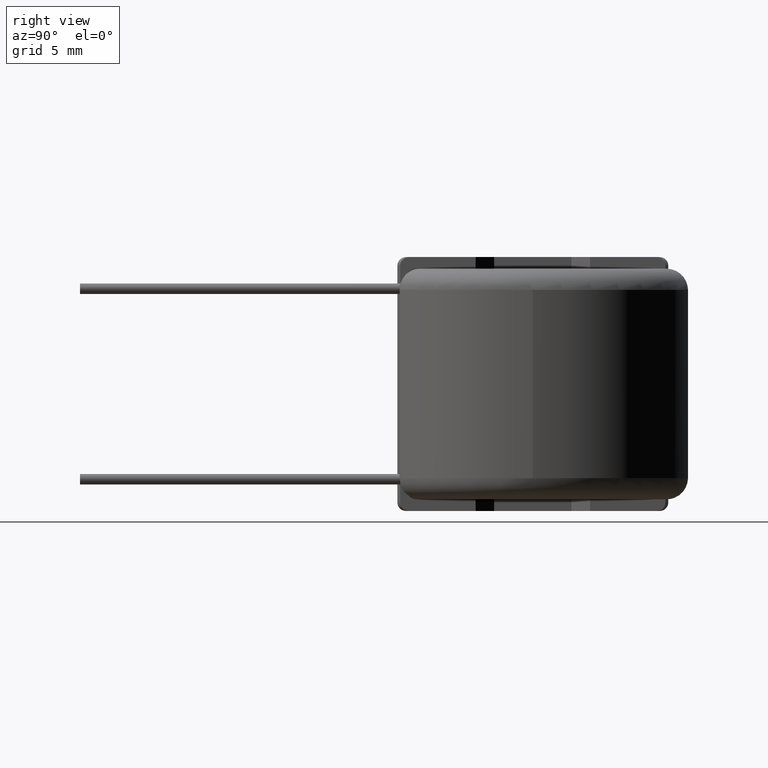
[diagram: clean part render]
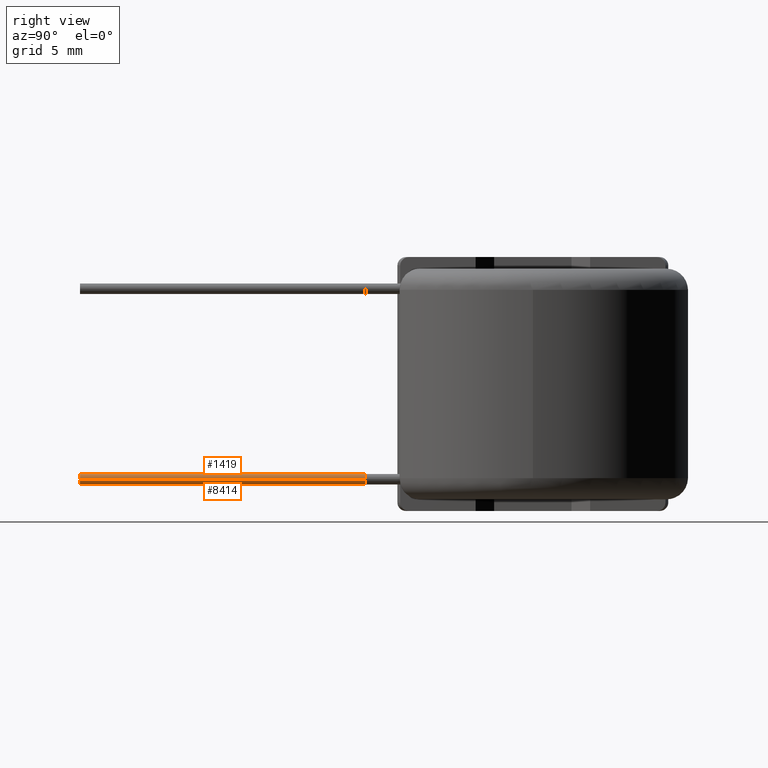
[diagram: same view with one multi-face feature highlighted, each face labeled with its STEP entity id]
A machine part, right view. The highlighted faces form ONE feature: a constant-radius fillet chain: 2 tangent blend faces with common blend radius 0.25 mm. The faces share edges in the B-rep.
Their STEP definitions:
[1] entity #1419 (Cylinder):
#70 = CARTESIAN_POINT ( 'NONE',  ( 2.499999999999992895, -21.40000000000000568, -4.500000000000000000 ) ) ;
#762 = DIRECTION ( 'NONE',  ( 1.000000000000000000, 0.0000000000000000000, 0.0000000000000000000 ) ) ;
#883 = CYLINDRICAL_SURFACE ( 'NONE', #1849, 0.2500000000000006661 ) ;
#940 = VERTEX_POINT ( 'NONE', #6138 ) ;
#1028 = CIRCLE ( 'NONE', #10235, 0.2500000000000002220 ) ;
#1182 = DIRECTION ( 'NONE',  ( 1.734723475976807094E-16, 1.000000000000000000, 0.0000000000000000000 ) ) ;
#1290 = FACE_OUTER_BOUND ( 'NONE', #10190, .T. ) ;
#1402 = CARTESIAN_POINT ( 'NONE',  ( 2.749999999999993783, -21.40000000000000568, -4.500000000000000000 ) ) ;
#1419 = ADVANCED_FACE ( 'NONE', ( #1290 ), #883, .T. ) ;
#1498 = CARTESIAN_POINT ( 'NONE',  ( 2.499999999999995115, -7.900000000000000355, -4.500000000000000000 ) ) ;
#1623 = EDGE_CURVE ( 'NONE', #3964, #7441, #3393, .T. ) ;
#1723 = DIRECTION ( 'NONE',  ( 3.469446951953614189E-16, 1.000000000000000000, -0.0000000000000000000 ) ) ;
#1849 = AXIS2_PLACEMENT_3D ( 'NONE', #6364, #8850, #762 ) ;
#2414 = ORIENTED_EDGE ( 'NONE', *, *, #9578, .T. ) ;
#2465 = EDGE_CURVE ( 'NONE', #940, #9850, #5828, .T. ) ;
#2642 = CARTESIAN_POINT ( 'NONE',  ( 2.749999999999995559, -7.900000000000000355, -4.500000000000000000 ) ) ;
#3223 = CIRCLE ( 'NONE', #6570, 0.2500000000000002220 ) ;
#3393 = LINE ( 'NONE', #8555, #7644 ) ;
#3925 = DIRECTION ( 'NONE',  ( 0.0000000000000000000, 0.0000000000000000000, 1.000000000000000000 ) ) ;
#3964 = VERTEX_POINT ( 'NONE', #1402 ) ;
#4692 = ORIENTED_EDGE ( 'NONE', *, *, #1623, .T. ) ;
#5483 = CARTESIAN_POINT ( 'NONE',  ( 2.249999999999995115, -7.900000000000000355, -4.500000000000000000 ) ) ;
#5568 = VECTOR ( 'NONE', #7195, 1000.000000000000000 ) ;
#5620 = DIRECTION ( 'NONE',  ( -0.0000000000000000000, -1.000000000000000000, -0.0000000000000000000 ) ) ;
#5828 = LINE ( 'NONE', #6473, #5568 ) ;
#6138 = CARTESIAN_POINT ( 'NONE',  ( 2.249999999999992450, -21.40000000000000568, -4.500000000000000000 ) ) ;
#6364 = CARTESIAN_POINT ( 'NONE',  ( 2.499999999999992895, -21.40000000000000568, -4.500000000000000000 ) ) ;
#6473 = CARTESIAN_POINT ( 'NONE',  ( 2.249999999999992450, -21.40000000000000568, -4.500000000000000000 ) ) ;
#6570 = AXIS2_PLACEMENT_3D ( 'NONE', #70, #1723, #6607 ) ;
#6607 = DIRECTION ( 'NONE',  ( 0.0000000000000000000, 0.0000000000000000000, -1.000000000000000000 ) ) ;
#7149 = ORIENTED_EDGE ( 'NONE', *, *, #2465, .F. ) ;
#7195 = DIRECTION ( 'NONE',  ( 1.734723475976807094E-16, 1.000000000000000000, 0.0000000000000000000 ) ) ;
#7441 = VERTEX_POINT ( 'NONE', #2642 ) ;
#7644 = VECTOR ( 'NONE', #1182, 1000.000000000000000 ) ;
#7926 = ORIENTED_EDGE ( 'NONE', *, *, #9235, .T. ) ;
#8555 = CARTESIAN_POINT ( 'NONE',  ( 2.749999999999993783, -21.40000000000000568, -4.500000000000000000 ) ) ;
#8850 = DIRECTION ( 'NONE',  ( 1.734723475976807094E-16, 1.000000000000000000, 0.0000000000000000000 ) ) ;
#9235 = EDGE_CURVE ( 'NONE', #940, #3964, #3223, .T. ) ;
#9578 = EDGE_CURVE ( 'NONE', #7441, #9850, #1028, .T. ) ;
#9850 = VERTEX_POINT ( 'NONE', #5483 ) ;
#10190 = EDGE_LOOP ( 'NONE', ( #7149, #7926, #4692, #2414 ) ) ;
#10235 = AXIS2_PLACEMENT_3D ( 'NONE', #1498, #5620, #3925 ) ;
[2] entity #8414 (Cylinder):
#556 = DIRECTION ( 'NONE',  ( 0.0000000000000000000, 0.0000000000000000000, -1.000000000000000000 ) ) ;
#921 = ORIENTED_EDGE ( 'NONE', *, *, #1623, .F. ) ;
#940 = VERTEX_POINT ( 'NONE', #6138 ) ;
#1182 = DIRECTION ( 'NONE',  ( 1.734723475976807094E-16, 1.000000000000000000, 0.0000000000000000000 ) ) ;
#1402 = CARTESIAN_POINT ( 'NONE',  ( 2.749999999999993783, -21.40000000000000568, -4.500000000000000000 ) ) ;
#1510 = ORIENTED_EDGE ( 'NONE', *, *, #2465, .T. ) ;
#1623 = EDGE_CURVE ( 'NONE', #3964, #7441, #3393, .T. ) ;
#1781 = CARTESIAN_POINT ( 'NONE',  ( 2.499999999999995115, -7.900000000000000355, -4.500000000000000000 ) ) ;
#2038 = CARTESIAN_POINT ( 'NONE',  ( 2.499999999999992895, -21.40000000000000568, -4.500000000000000000 ) ) ;
#2075 = DIRECTION ( 'NONE',  ( 1.734723475976807094E-16, 1.000000000000000000, 0.0000000000000000000 ) ) ;
#2464 = EDGE_CURVE ( 'NONE', #3964, #940, #9053, .T. ) ;
#2465 = EDGE_CURVE ( 'NONE', #940, #9850, #5828, .T. ) ;
#2620 = DIRECTION ( 'NONE',  ( -0.0000000000000000000, -1.000000000000000000, -0.0000000000000000000 ) ) ;
#2642 = CARTESIAN_POINT ( 'NONE',  ( 2.749999999999995559, -7.900000000000000355, -4.500000000000000000 ) ) ;
#2674 = CIRCLE ( 'NONE', #9951, 0.2500000000000002220 ) ;
#2934 = AXIS2_PLACEMENT_3D ( 'NONE', #2038, #2075, #10711 ) ;
#3393 = LINE ( 'NONE', #8555, #7644 ) ;
#3566 = ORIENTED_EDGE ( 'NONE', *, *, #2464, .T. ) ;
#3878 = CARTESIAN_POINT ( 'NONE',  ( 2.499999999999992895, -21.40000000000000568, -4.500000000000000000 ) ) ;
#3964 = VERTEX_POINT ( 'NONE', #1402 ) ;
#4281 = DIRECTION ( 'NONE',  ( 0.0000000000000000000, 0.0000000000000000000, 1.000000000000000000 ) ) ;
#4356 = FACE_OUTER_BOUND ( 'NONE', #5867, .T. ) ;
#5483 = CARTESIAN_POINT ( 'NONE',  ( 2.249999999999995115, -7.900000000000000355, -4.500000000000000000 ) ) ;
#5568 = VECTOR ( 'NONE', #7195, 1000.000000000000000 ) ;
#5828 = LINE ( 'NONE', #6473, #5568 ) ;
#5867 = EDGE_LOOP ( 'NONE', ( #3566, #1510, #10596, #921 ) ) ;
#6138 = CARTESIAN_POINT ( 'NONE',  ( 2.249999999999992450, -21.40000000000000568, -4.500000000000000000 ) ) ;
#6473 = CARTESIAN_POINT ( 'NONE',  ( 2.249999999999992450, -21.40000000000000568, -4.500000000000000000 ) ) ;
#7195 = DIRECTION ( 'NONE',  ( 1.734723475976807094E-16, 1.000000000000000000, 0.0000000000000000000 ) ) ;
#7441 = VERTEX_POINT ( 'NONE', #2642 ) ;
#7470 = CYLINDRICAL_SURFACE ( 'NONE', #2934, 0.2500000000000006661 ) ;
#7629 = EDGE_CURVE ( 'NONE', #9850, #7441, #2674, .T. ) ;
#7644 = VECTOR ( 'NONE', #1182, 1000.000000000000000 ) ;
#8414 = ADVANCED_FACE ( 'NONE', ( #4356 ), #7470, .T. ) ;
#8555 = CARTESIAN_POINT ( 'NONE',  ( 2.749999999999993783, -21.40000000000000568, -4.500000000000000000 ) ) ;
#9053 = CIRCLE ( 'NONE', #9123, 0.2500000000000002220 ) ;
#9123 = AXIS2_PLACEMENT_3D ( 'NONE', #3878, #9702, #556 ) ;
#9702 = DIRECTION ( 'NONE',  ( 3.469446951953614189E-16, 1.000000000000000000, -0.0000000000000000000 ) ) ;
#9850 = VERTEX_POINT ( 'NONE', #5483 ) ;
#9951 = AXIS2_PLACEMENT_3D ( 'NONE', #1781, #2620, #4281 ) ;
#10596 = ORIENTED_EDGE ( 'NONE', *, *, #7629, .T. ) ;
#10711 = DIRECTION ( 'NONE',  ( 1.000000000000000000, 0.0000000000000000000, 0.0000000000000000000 ) ) ;